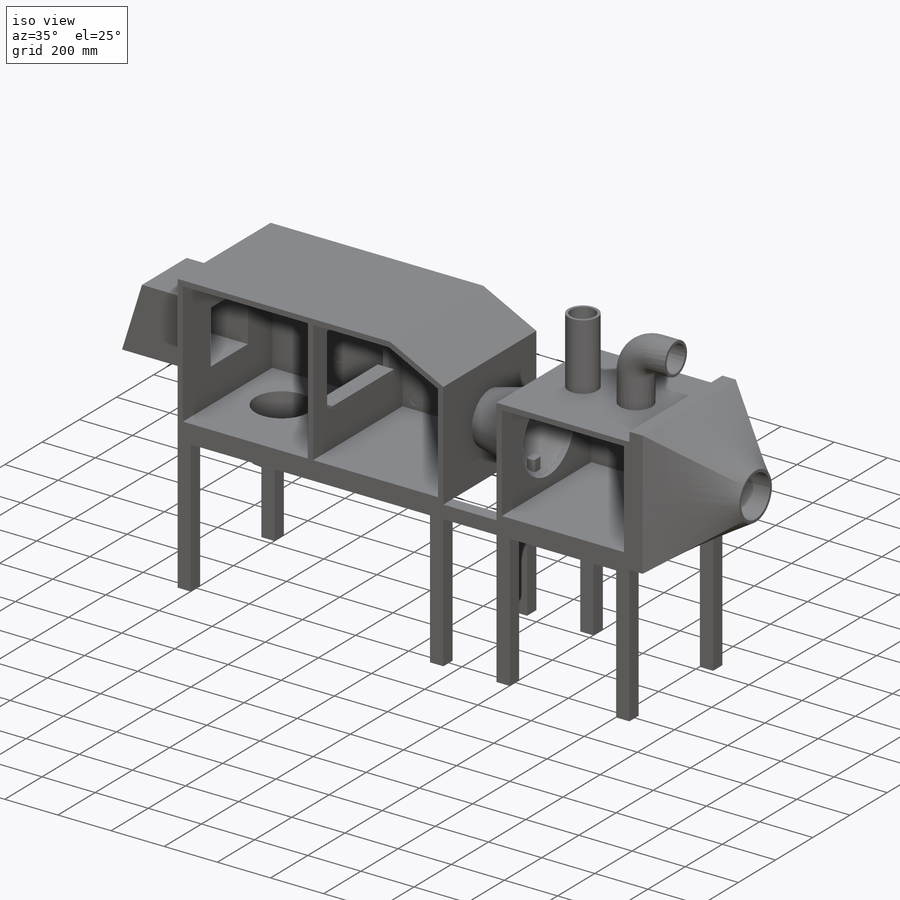
[diagram: iso view]
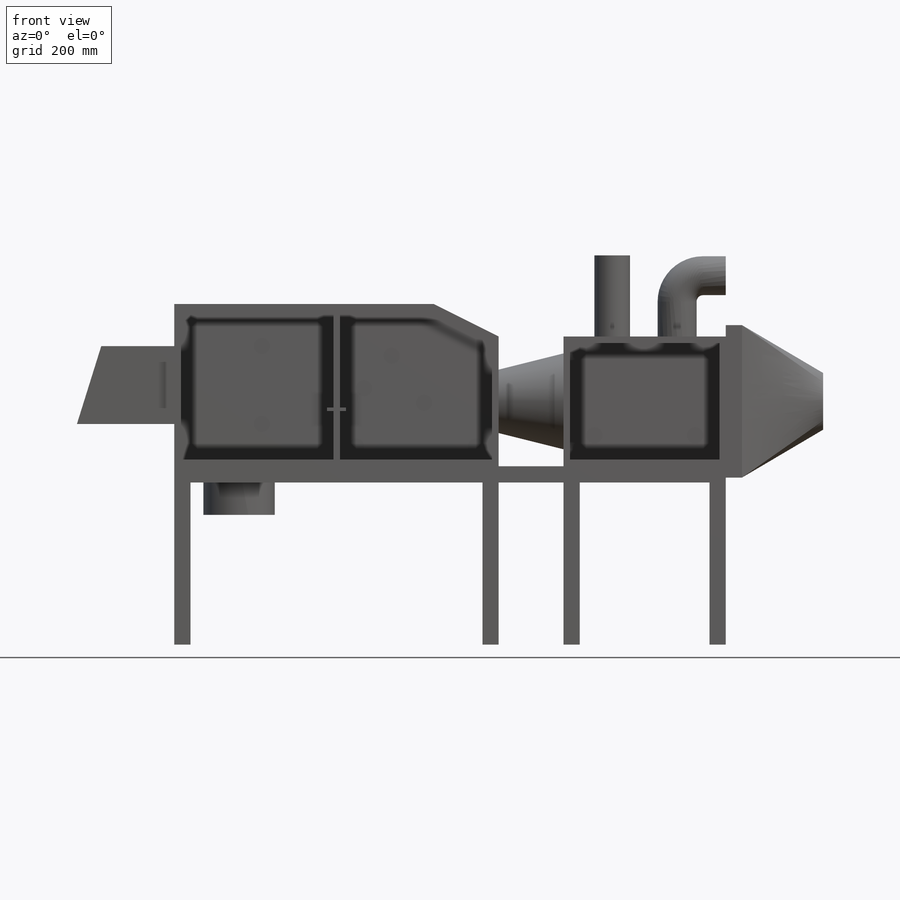
[diagram: front view]
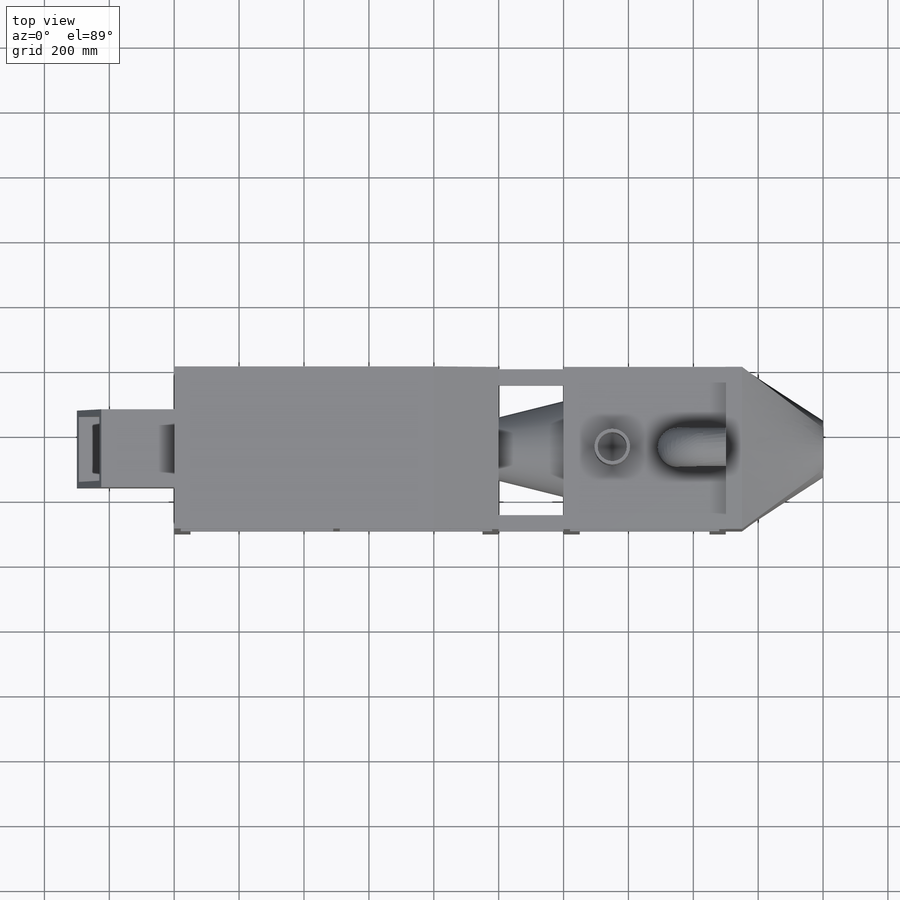
[diagram: top view]
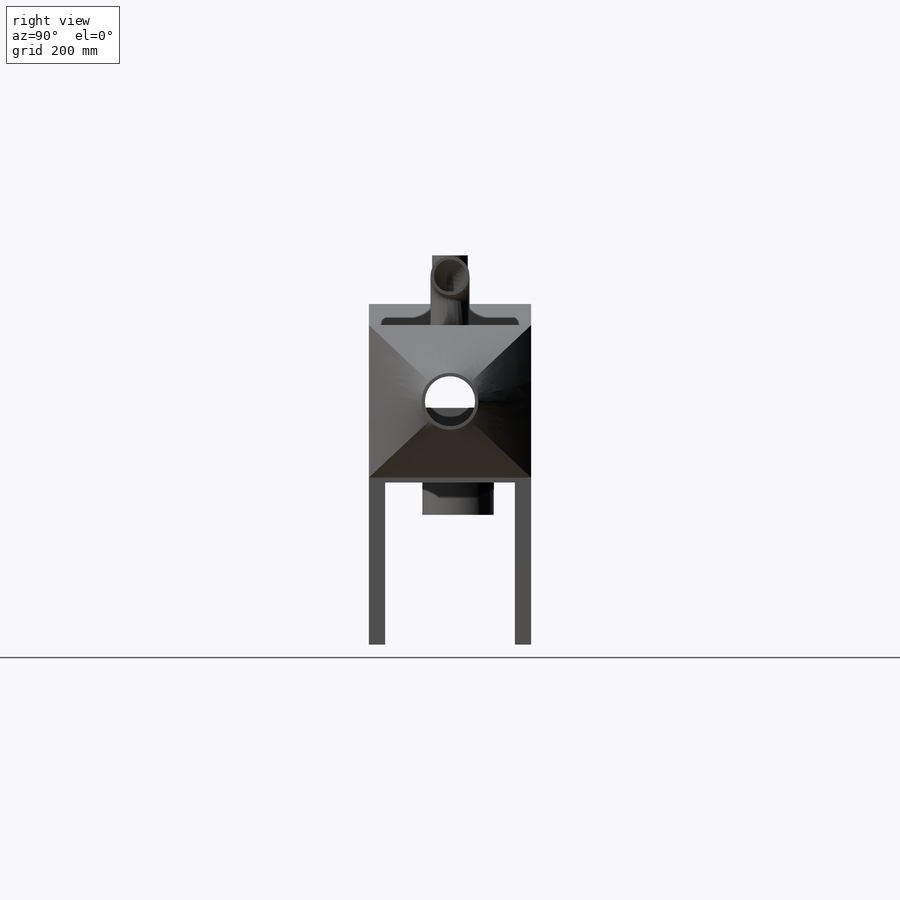
[diagram: right view]
SOLIDWORKS PART (.sldprt)
format: sldprt  version: not decoded by parser v0  size: 1,000,448 bytes
history: native  units: mm
features: sketch x31, cut_extrude x14, extrude x13, plane x8, mirror x2, material x1, sweep x1, shell x1, pattern_circular x1, fillet x1 (+13 scaffold rows collapsed)
feature tree (86):
  scaffold x13  (default folders/planes/origin — collapsed)
  material  "Material <not specified>"
  sketch  "Sketch1"  dims[c1.D1=500.0mm c1.D2=1000.0mm c1.D3=400.0mm c1.D4=800.0mm c2.D1=~223.606798mm]
  extrude  "Boss-Extrude1"  Depth=500mm
  sketch  "Sketch2"  dims[D1=20.0mm]
  cut_extrude  "Cut-Extrude1"  Depth=480mm
  sketch  "Sketch3"  dims[D3=175.0mm D1=250.0mm D2=200.0mm]
  plane  "Plane1"  Offset=200mm
  plane  "Plane2"  Offset=200mm
  sketch  "Sketch6"  dims[D1=275.0mm]
  sketch  "Sketch7"
  extrude  "Boss-Extrude2"  Depth=500mm
  sketch  "Sketch8"  dims[D1=20.0mm]
  cut_extrude  "Cut-Extrude2"  Depth=480mm
  sketch  "Sketch12"  dims[D1=150.0mm D2=150.0mm D3=150.0mm D4=150.0mm D5=20.0mm]
  extrude  "Boss-Extrude3"  Depth=300mm
  sketch  "Sketch13"  dims[D1=75.0mm D2=20.0mm]
  cut_extrude  "Cut-Extrude3"  Depth=300mm
  sketch  "Sketch15"  dims[D1=50.0mm]
  extrude  "Boss-Extrude5"  Depth=50mm
  sketch  "Sketch16"
  extrude  "Boss-Extrude6"  Depth=500mm
  sketch  "Sketch17"  dims[D1=50.0mm D2=50.0mm]
  extrude  "Boss-Extrude7"  Depth=500mm
  plane  "Plane4"  Offset=250mm
  mirror  "Mirror1"
  sketch  "Sketch18"  dims[D2=90.0mm D1=150.0mm D3=10.0mm]
  extrude  "Boss-Extrude8"  Depth=250mm
  sketch  "Sketch19"  dims[D3=100.0mm D1=150.0mm D2=250.0mm D4=10.0mm]
  plane  "Plane5"  Offset=0mm
  plane  "Plane6"  Offset=250mm
  sketch  "Sketch22"  dims[c1.D2=80.0mm c1.D1=~187.187807mm c2.D1=90.0deg c3.D1=150.0mm c3.D3=~587.187807mm]
  sweep  "Sweep2"
  sketch  "Sketch30"  dims[D1=35.0mm D2=35.0mm D3=470.0mm]
  extrude  "Boss-Extrude11"  Depth=50mm
  plane  "Plane8"  Offset=250mm
  sketch  "Sketch34"  dims[c1.D1=175.0mm c1.D2=250.0mm c1.D3=~352.325438mm c2.D3=90.0deg c3.D3=235.0mm]
  extrude  "Loft4"  [1 undecoded]
  sketch  "Sketch36"  dims[D1=50.0mm D2=50.0mm D3=50.0mm D4=130.0mm D5=130.0mm]
  cut_extrude  "Cut-Extrude4"  Depth=2mm
  plane  "Plane9"  Offset=100mm
  mirror  "Mirror2"
  sketch  "Sketch37"
  cut_extrude  "Cut-Extrude5"  Depth=500mm
  shell  "Shell4"  Thickness=10mm
  sketch  "Sketch40"
  cut_extrude  "Cut-Extrude10"  Depth=20mm
  sketch  "Sketch41"  dims[D1=275.0mm]
  cut_extrude  "Cut-Extrude11"  Depth=20mm
  sketch  "Sketch42"  dims[c1.D2=155.0mm c1.D3=175.0mm c2.D2=155.0mm c2.D1=10.0mm c2.D3=10.0mm]
  cut_extrude  "Cut-Extrude14"  Depth=519.75mm
  sketch  "Sketch43"  dims[c1.D1=200.0mm c1.D2=150.0mm c1.D3=~151.40385mm c2.D3=90.0deg c3.D3=~151.40385mm c4.D3=90.0deg c5.D3=175.0mm]
  cut_extrude  "Cut-Extrude15"  Depth=199.75mm
  sketch  "Sketch44"  dims[D1=10.0mm]
  extrude  "Boss-Extrude13"  Depth=150mm
  plane  "Plane10"  Offset=150mm
  sketch  "Sketch45"  dims[c1.D3=~123.144475mm c1.D1=~43.489066mm c1.D2=~41.353442mm c1.D4=~229.820493mm c1.D5=~250.497214mm c2.D4=~229.820493mm c2.D5=~211.703352mm c2.D6=~289.610476mm c3.D5=~211.703352mm]
  extrude  "Boss-Extrude14"  Depth=30mm
  pattern_circular  "CirPattern7"  Count=4 Angle=90deg
  fillet  "Fillet4"  Radius=10mm
  sketch  "Sketch46"  dims[D1=470.0mm D2=20.0mm]
  extrude  "Boss-Extrude15"  Depth=480mm
  sketch  "Sketch47"  dims[D3=50.0mm D1=0.0mm D2=0.0mm D4=240.0mm D5=250.0mm]
  cut_extrude  "Cut-Extrude16"  Depth=2mm
  sketch  "Sketch49"  dims[D1=75.0mm D2=75.0mm D3=50.0mm D4=150.0mm]
  cut_extrude  "Cut-Extrude17"  Depth=20mm
  sketch  "Sketch50"  dims[c1.D1=60.0mm c1.D2=~1.769875mm c2.D1=20.0mm c2.D2=20.0mm c2.D3=60.0mm c3.D3=90.0deg c4.D3=330.0mm]
  extrude  "Boss-Extrude16"  Depth=10mm
  sketch  "Sketch51"  dims[c1.D5=50.0mm c1.D1=40.0mm c1.D2=40.0mm c1.D3=~60.119542mm c2.D3=90.0deg c3.D3=50.0mm c3.D4=50.0mm]
  cut_extrude  "Cut-Extrude18"  Depth=2mm
  sketch  "Sketch53"  dims[D3=50.0mm D1=75.0mm D2=75.0mm D4=75.0mm D5=75.0mm]
  cut_extrude  "Cut-Extrude19"  Depth=2mm
  sketch  "Sketch55"  dims[c1.D2=115.0mm c1.D5=200.0mm c1.D6=115.0mm c1.D7=115.0mm c1.D9=50.0mm c1.D10=50.0mm c1.D11=50.0mm c1.D12=115.0mm c1.D1=100.0mm c1.D3=220.0mm c1.D4=320.0mm c2.D6=75.0mm c2.D7=160.0mm c2.D8=175.0mm c2.D9=260.0mm]
  cut_extrude  "Cut-Extrude20"  Depth=2mm
decode coverage: 56 of 64 modeling features carry decoded parameters
note: ~ marks probable driven/reference dimensions
note: 1 parameter value undecoded
note: suppression state not decoded; provenance and decode notes live in map.json
